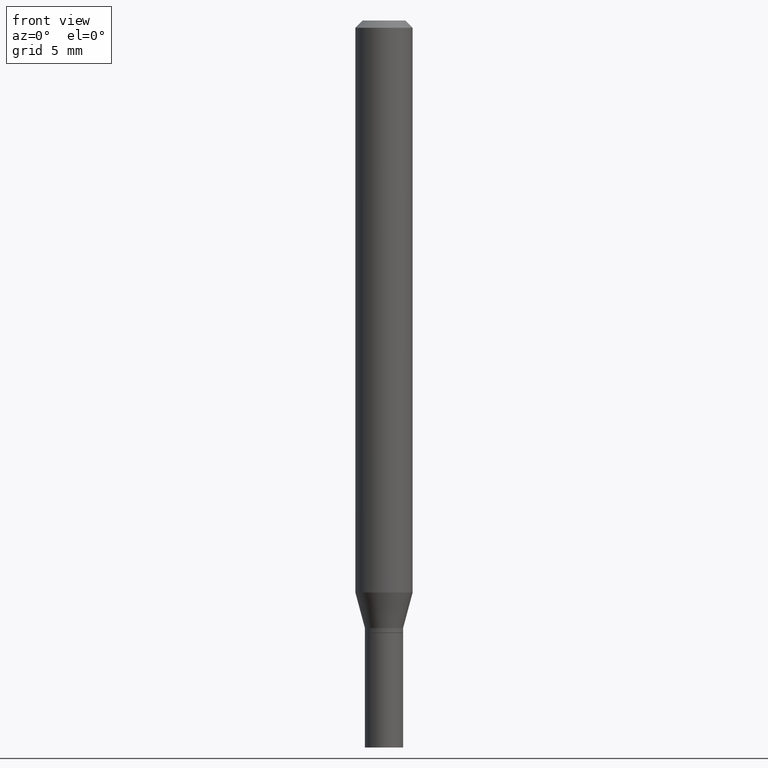
[diagram: clean part render]
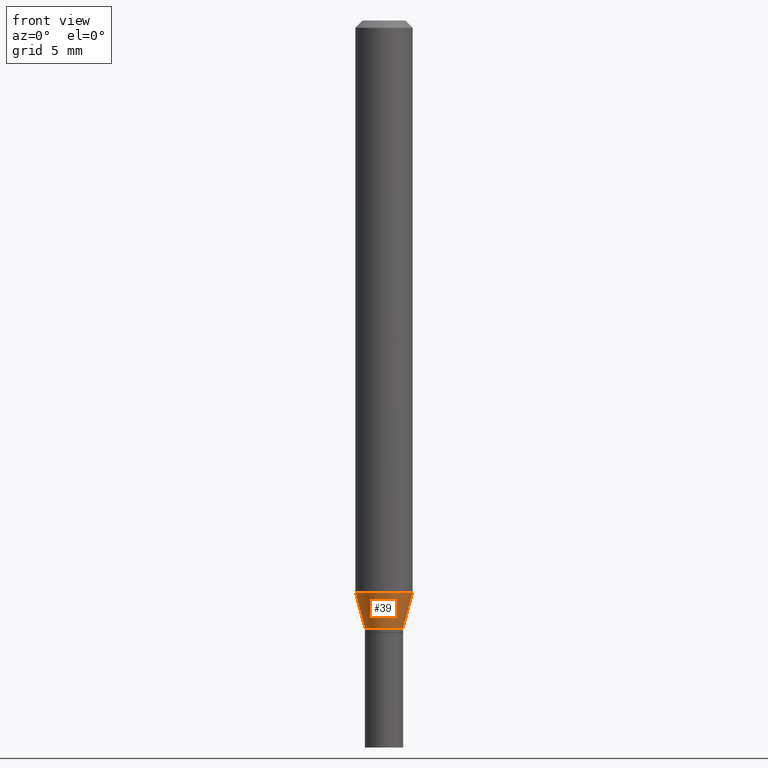
[diagram: same view with one face highlighted and labeled with its STEP entity id]
A machine part, front view. The second image highlights one B-rep face of the part: STEP entity #39.
In plain terms, the highlighted conical surface has half-angle 15 deg.
Its self-contained STEP definition (entity closure, byte-faithful):
#8 = DIRECTION ( 'NONE',  ( 1.000000000000000000, -6.982962677686256455E-15, 0.000000000000000000 ) ) ;
#39 = ADVANCED_FACE ( 'NONE', ( #149 ), #300, .T. ) ;
#47 = CARTESIAN_POINT ( 'NONE',  ( 0.05904999999999999832, -4.533264649479156735E-15, -1.180278599090893055 ) ) ;
#56 = CARTESIAN_POINT ( 'NONE',  ( -0.03934999999999993364, -4.098020736119937292E-15, -1.253800000000000248 ) ) ;
#59 = LINE ( 'NONE', #56, #219 ) ;
#68 = CARTESIAN_POINT ( 'NONE',  ( -0.03934999999999993364, -3.899682977007690201E-15, -1.253800000000000248 ) ) ;
#70 = VERTEX_POINT ( 'NONE', #250 ) ;
#72 = ORIENTED_EDGE ( 'NONE', *, *, #218, .F. ) ;
#77 = CARTESIAN_POINT ( 'NONE',  ( 3.066128789194924468E-29, -4.377619302641535898E-15, -1.253800000000000248 ) ) ;
#116 = DIRECTION ( 'NONE',  ( 1.000000000000000000, -6.982962677686265133E-15, 0.000000000000000000 ) ) ;
#129 = VERTEX_POINT ( 'NONE', #47 ) ;
#147 = EDGE_LOOP ( 'NONE', ( #312, #336, #237, #72 ) ) ;
#149 = FACE_OUTER_BOUND ( 'NONE', #147, .T. ) ;
#152 = EDGE_CURVE ( 'NONE', #460, #304, #295, .T. ) ;
#176 = VECTOR ( 'NONE', #378, 39.37007874015748143 ) ;
#187 = DIRECTION ( 'NONE',  ( -2.445468806185136597E-29, 3.491481338843145583E-15, 1.000000000000000000 ) ) ;
#195 = DIRECTION ( 'NONE',  ( -0.2588190451025211281, 5.211531920934548675E-15, 0.9659258262890682012 ) ) ;
#204 = LINE ( 'NONE', #340, #176 ) ;
#215 = DIRECTION ( 'NONE',  ( 1.000000000000000000, -6.982962677686256455E-15, 0.000000000000000000 ) ) ;
#218 = EDGE_CURVE ( 'NONE', #70, #129, #422, .T. ) ;
#219 = VECTOR ( 'NONE', #195, 39.37007874015748143 ) ;
#237 = ORIENTED_EDGE ( 'NONE', *, *, #454, .T. ) ;
#250 = CARTESIAN_POINT ( 'NONE',  ( -0.05904999999999999832, -3.701345217895443899E-15, -1.180278599090893055 ) ) ;
#295 = CIRCLE ( 'NONE', #407, 0.03934999999999993364 ) ;
#296 = DIRECTION ( 'NONE',  ( -2.445468806185136597E-29, 3.491481338843145583E-15, 1.000000000000000000 ) ) ;
#300 = CONICAL_SURFACE ( 'NONE', #431, 0.03934999999999993364, 0.2617993877991497964 ) ;
#304 = VERTEX_POINT ( 'NONE', #447 ) ;
#312 = ORIENTED_EDGE ( 'NONE', *, *, #313, .F. ) ;
#313 = EDGE_CURVE ( 'NONE', #460, #70, #59, .T. ) ;
#332 = CARTESIAN_POINT ( 'NONE',  ( 2.886334496684671915E-29, -4.120920703361783392E-15, -1.180278599090893055 ) ) ;
#336 = ORIENTED_EDGE ( 'NONE', *, *, #152, .T. ) ;
#340 = CARTESIAN_POINT ( 'NONE',  ( 0.03934999999999993364, -4.652398884008490026E-15, -1.253800000000000248 ) ) ;
#378 = DIRECTION ( 'NONE',  ( 0.2588190451025211281, 1.565188264969623940E-15, 0.9659258262890682012 ) ) ;
#398 = DIRECTION ( 'NONE',  ( -2.445468806185136597E-29, 3.491481338843145583E-15, 1.000000000000000000 ) ) ;
#407 = AXIS2_PLACEMENT_3D ( 'NONE', #442, #187, #8 ) ;
#422 = CIRCLE ( 'NONE', #453, 0.05904999999999999832 ) ;
#431 = AXIS2_PLACEMENT_3D ( 'NONE', #77, #398, #215 ) ;
#442 = CARTESIAN_POINT ( 'NONE',  ( 3.066128789194924468E-29, -4.377619302641535898E-15, -1.253800000000000248 ) ) ;
#447 = CARTESIAN_POINT ( 'NONE',  ( 0.03934999999999993364, -4.652398884008490026E-15, -1.253800000000000248 ) ) ;
#453 = AXIS2_PLACEMENT_3D ( 'NONE', #332, #296, #116 ) ;
#454 = EDGE_CURVE ( 'NONE', #304, #129, #204, .T. ) ;
#460 = VERTEX_POINT ( 'NONE', #68 ) ;